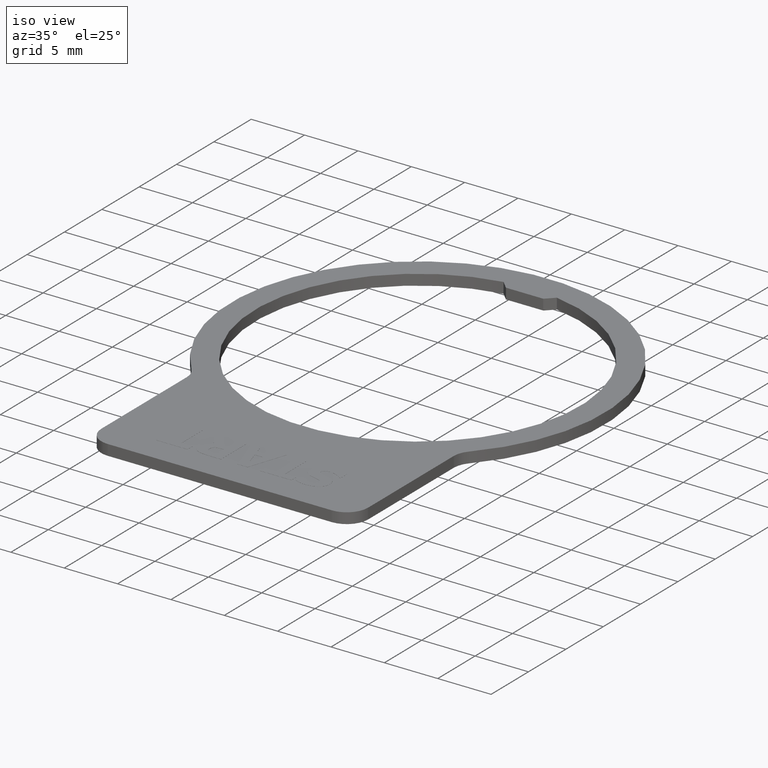
[diagram: clean part render]
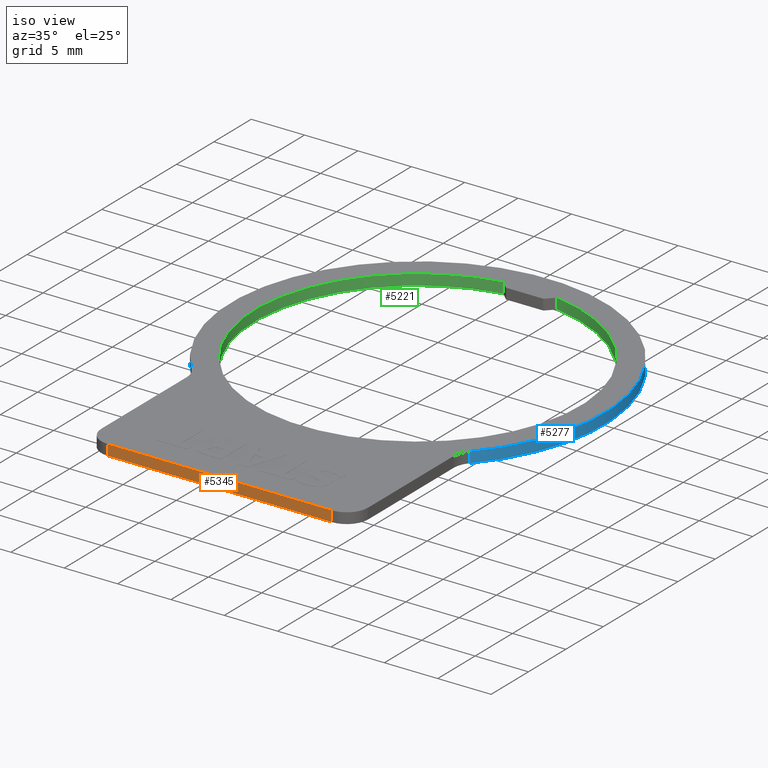
[diagram: same view with three faces highlighted in distinct colors, each labeled with its STEP entity id]
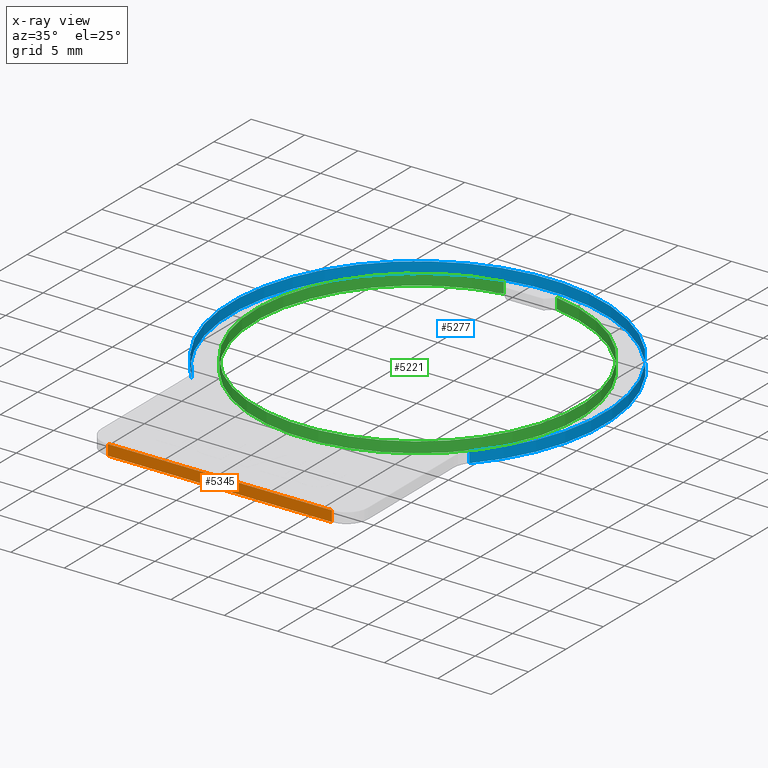
[diagram: x-ray of the same camera — body ghosted, the three highlighted faces saturated]
A machine part, iso view with three faces highlighted in distinct colors.
The next image is the same camera in x-ray (body ghosted, the three faces saturated) — at least one of them is partly hidden behind the body in this view.
Their STEP definitions:

[orange] entity #5345 — the highlighted planar face has unit normal (0, -1, 0).
#2439=CARTESIAN_POINT('',(-17.898424810307670,-22.893851612925708,0.0));
#2440=VERTEX_POINT('',#2439);
#2493=CARTESIAN_POINT('',(3.101575189692329,-22.893851612925708,0.0));
#2494=VERTEX_POINT('',#2493);
#2502=CARTESIAN_POINT('',(3.101575189692329,-22.893851612925708,0.0));
#2503=DIRECTION('',(-1.0,0.0,0.0));
#2504=VECTOR('',#2503,21.0);
#2505=LINE('',#2502,#2504);
#2506=EDGE_CURVE('',#2494,#2440,#2505,.T.);
#4992=CARTESIAN_POINT('',(-17.898424810307670,-22.893851612925708,1.0));
#4993=VERTEX_POINT('',#4992);
#5001=CARTESIAN_POINT('',(3.101575189692329,-22.893851612925708,1.0));
#5002=VERTEX_POINT('',#5001);
#5003=CARTESIAN_POINT('',(3.101575189692329,-22.893851612925708,1.0));
#5004=DIRECTION('',(-1.0,0.0,0.0));
#5005=VECTOR('',#5004,21.0);
#5006=LINE('',#5003,#5005);
#5007=EDGE_CURVE('',#5002,#4993,#5006,.T.);
#5318=CARTESIAN_POINT('',(3.101575189692329,-22.893851612925708,0.0));
#5319=DIRECTION('',(0.0,0.0,1.0));
#5320=VECTOR('',#5319,1.0);
#5321=LINE('',#5318,#5320);
#5322=EDGE_CURVE('',#2494,#5002,#5321,.T.);
#5329=CARTESIAN_POINT('',(3.101575189692329,-22.893851612925708,0.0));
#5330=DIRECTION('',(0.0,-1.0,0.0));
#5331=DIRECTION('',(0.0,0.0,-1.0));
#5332=AXIS2_PLACEMENT_3D('',#5329,#5330,#5331);
#5333=PLANE('',#5332);
#5334=ORIENTED_EDGE('',*,*,#5007,.T.);
#5335=CARTESIAN_POINT('',(-17.898424810307670,-22.893851612925708,0.0));
#5336=DIRECTION('',(0.0,0.0,1.0));
#5337=VECTOR('',#5336,1.0);
#5338=LINE('',#5335,#5337);
#5339=EDGE_CURVE('',#2440,#4993,#5338,.T.);
#5340=ORIENTED_EDGE('',*,*,#5339,.F.);
#5341=ORIENTED_EDGE('',*,*,#2506,.F.);
#5342=ORIENTED_EDGE('',*,*,#5322,.T.);
#5343=EDGE_LOOP('',(#5334,#5340,#5341,#5342));
#5344=FACE_OUTER_BOUND('',#5343,.T.);
#5345=ADVANCED_FACE('',(#5344),#5333,.T.);

[blue] entity #5277 — the highlighted cylindrical surface (partial cylindrical patch) has radius 17.5 mm, axis along (0, 0, 1).
#2458=CARTESIAN_POINT('',(-20.411245323128185,-8.094984135084308,0.0));
#2459=VERTEX_POINT('',#2458);
#2467=CARTESIAN_POINT('',(5.614395702512835,-8.094984135084314,0.0));
#2468=VERTEX_POINT('',#2467);
#2469=CARTESIAN_POINT('',(-7.398424810307668,3.606148387074293,0.0));
#2470=DIRECTION('',(0.0,0.0,-1.0));
#2471=DIRECTION('',(-0.743589743589743,0.668636144123349,0.0));
#2472=AXIS2_PLACEMENT_3D('',#2469,#2470,#2471);
#2473=CIRCLE('',#2472,17.500000000000004);
#2474=EDGE_CURVE('',#2459,#2468,#2473,.T.);
#5026=CARTESIAN_POINT('',(5.614395702512835,-8.094984135084314,1.0));
#5027=VERTEX_POINT('',#5026);
#5035=CARTESIAN_POINT('',(-20.411245323128185,-8.094984135084308,1.0));
#5036=VERTEX_POINT('',#5035);
#5037=CARTESIAN_POINT('',(-7.398424810307668,3.606148387074293,1.0));
#5038=DIRECTION('',(0.0,0.0,-1.0));
#5039=DIRECTION('',(-0.743589743589743,0.668636144123349,0.0));
#5040=AXIS2_PLACEMENT_3D('',#5037,#5038,#5039);
#5041=CIRCLE('',#5040,17.500000000000004);
#5042=EDGE_CURVE('',#5036,#5027,#5041,.T.);
#5250=CARTESIAN_POINT('',(-20.411245323128185,-8.094984135084308,0.0));
#5251=DIRECTION('',(0.0,0.0,1.0));
#5252=VECTOR('',#5251,1.0);
#5253=LINE('',#5250,#5252);
#5254=EDGE_CURVE('',#2459,#5036,#5253,.T.);
#5261=CARTESIAN_POINT('',(-7.398424810307668,3.606148387074293,0.0));
#5262=DIRECTION('',(0.0,0.0,1.0));
#5263=DIRECTION('',(-0.743589743589743,0.668636144123349,0.0));
#5264=AXIS2_PLACEMENT_3D('',#5261,#5262,#5263);
#5265=CYLINDRICAL_SURFACE('',#5264,17.500000000000004);
#5266=ORIENTED_EDGE('',*,*,#5042,.T.);
#5267=CARTESIAN_POINT('',(5.614395702512835,-8.094984135084314,0.0));
#5268=DIRECTION('',(0.0,0.0,1.0));
#5269=VECTOR('',#5268,1.0);
#5270=LINE('',#5267,#5269);
#5271=EDGE_CURVE('',#2468,#5027,#5270,.T.);
#5272=ORIENTED_EDGE('',*,*,#5271,.F.);
#5273=ORIENTED_EDGE('',*,*,#2474,.F.);
#5274=ORIENTED_EDGE('',*,*,#5254,.T.);
#5275=EDGE_LOOP('',(#5266,#5272,#5273,#5274));
#5276=FACE_OUTER_BOUND('',#5275,.T.);
#5277=ADVANCED_FACE('',(#5276),#5265,.T.);

[green] entity #5221 — the highlighted cylindrical surface (partial cylindrical patch) has radius 15.25 mm, axis along (0, 0, 1).
#2512=CARTESIAN_POINT('',(-9.898424810307674,18.649834770404677,0.0));
#2513=VERTEX_POINT('',#2512);
#2520=CARTESIAN_POINT('',(-4.898424810307673,18.649834770404681,0.0));
#2521=VERTEX_POINT('',#2520);
#2522=CARTESIAN_POINT('',(-7.398424810307668,3.606148387074293,0.0));
#2523=DIRECTION('',(0.0,0.0,1.000000000000000));
#2524=DIRECTION('',(-0.163934426229508,0.986471238251173,0.0));
#2525=AXIS2_PLACEMENT_3D('',#2522,#2523,#2524);
#2526=CIRCLE('',#2525,15.250000000000000);
#2527=EDGE_CURVE('',#2513,#2521,#2526,.T.);
#5053=CARTESIAN_POINT('',(-9.898424810307674,18.649834770404677,1.0));
#5054=VERTEX_POINT('',#5053);
#5071=CARTESIAN_POINT('',(-4.898424810307673,18.649834770404681,1.0));
#5072=VERTEX_POINT('',#5071);
#5079=CARTESIAN_POINT('',(-7.398424810307668,3.606148387074293,1.0));
#5080=DIRECTION('',(0.0,0.0,-1.000000000000000));
#5081=DIRECTION('',(-0.163934426229508,0.986471238251173,0.0));
#5082=AXIS2_PLACEMENT_3D('',#5079,#5080,#5081);
#5083=CIRCLE('',#5082,15.250000000000000);
#5084=EDGE_CURVE('',#5072,#5054,#5083,.T.);
#5160=CARTESIAN_POINT('',(-9.898424810307674,18.649834770404677,0.0));
#5161=DIRECTION('',(0.0,0.0,1.0));
#5162=VECTOR('',#5161,1.0);
#5163=LINE('',#5160,#5162);
#5164=EDGE_CURVE('',#2513,#5054,#5163,.T.);
#5201=CARTESIAN_POINT('',(-4.898424810307673,18.649834770404681,0.0));
#5202=DIRECTION('',(0.0,0.0,1.0));
#5203=VECTOR('',#5202,1.0);
#5204=LINE('',#5201,#5203);
#5205=EDGE_CURVE('',#2521,#5072,#5204,.T.);
#5210=CARTESIAN_POINT('',(-7.398424810307668,3.606148387074293,0.0));
#5211=DIRECTION('',(0.0,0.0,1.0));
#5212=DIRECTION('',(-0.163934426229508,0.986471238251173,0.0));
#5213=AXIS2_PLACEMENT_3D('',#5210,#5211,#5212);
#5214=CYLINDRICAL_SURFACE('',#5213,15.250000000000002);
#5215=ORIENTED_EDGE('',*,*,#5084,.F.);
#5216=ORIENTED_EDGE('',*,*,#5205,.F.);
#5217=ORIENTED_EDGE('',*,*,#2527,.F.);
#5218=ORIENTED_EDGE('',*,*,#5164,.T.);
#5219=EDGE_LOOP('',(#5215,#5216,#5217,#5218));
#5220=FACE_OUTER_BOUND('',#5219,.T.);
#5221=ADVANCED_FACE('',(#5220),#5214,.F.);